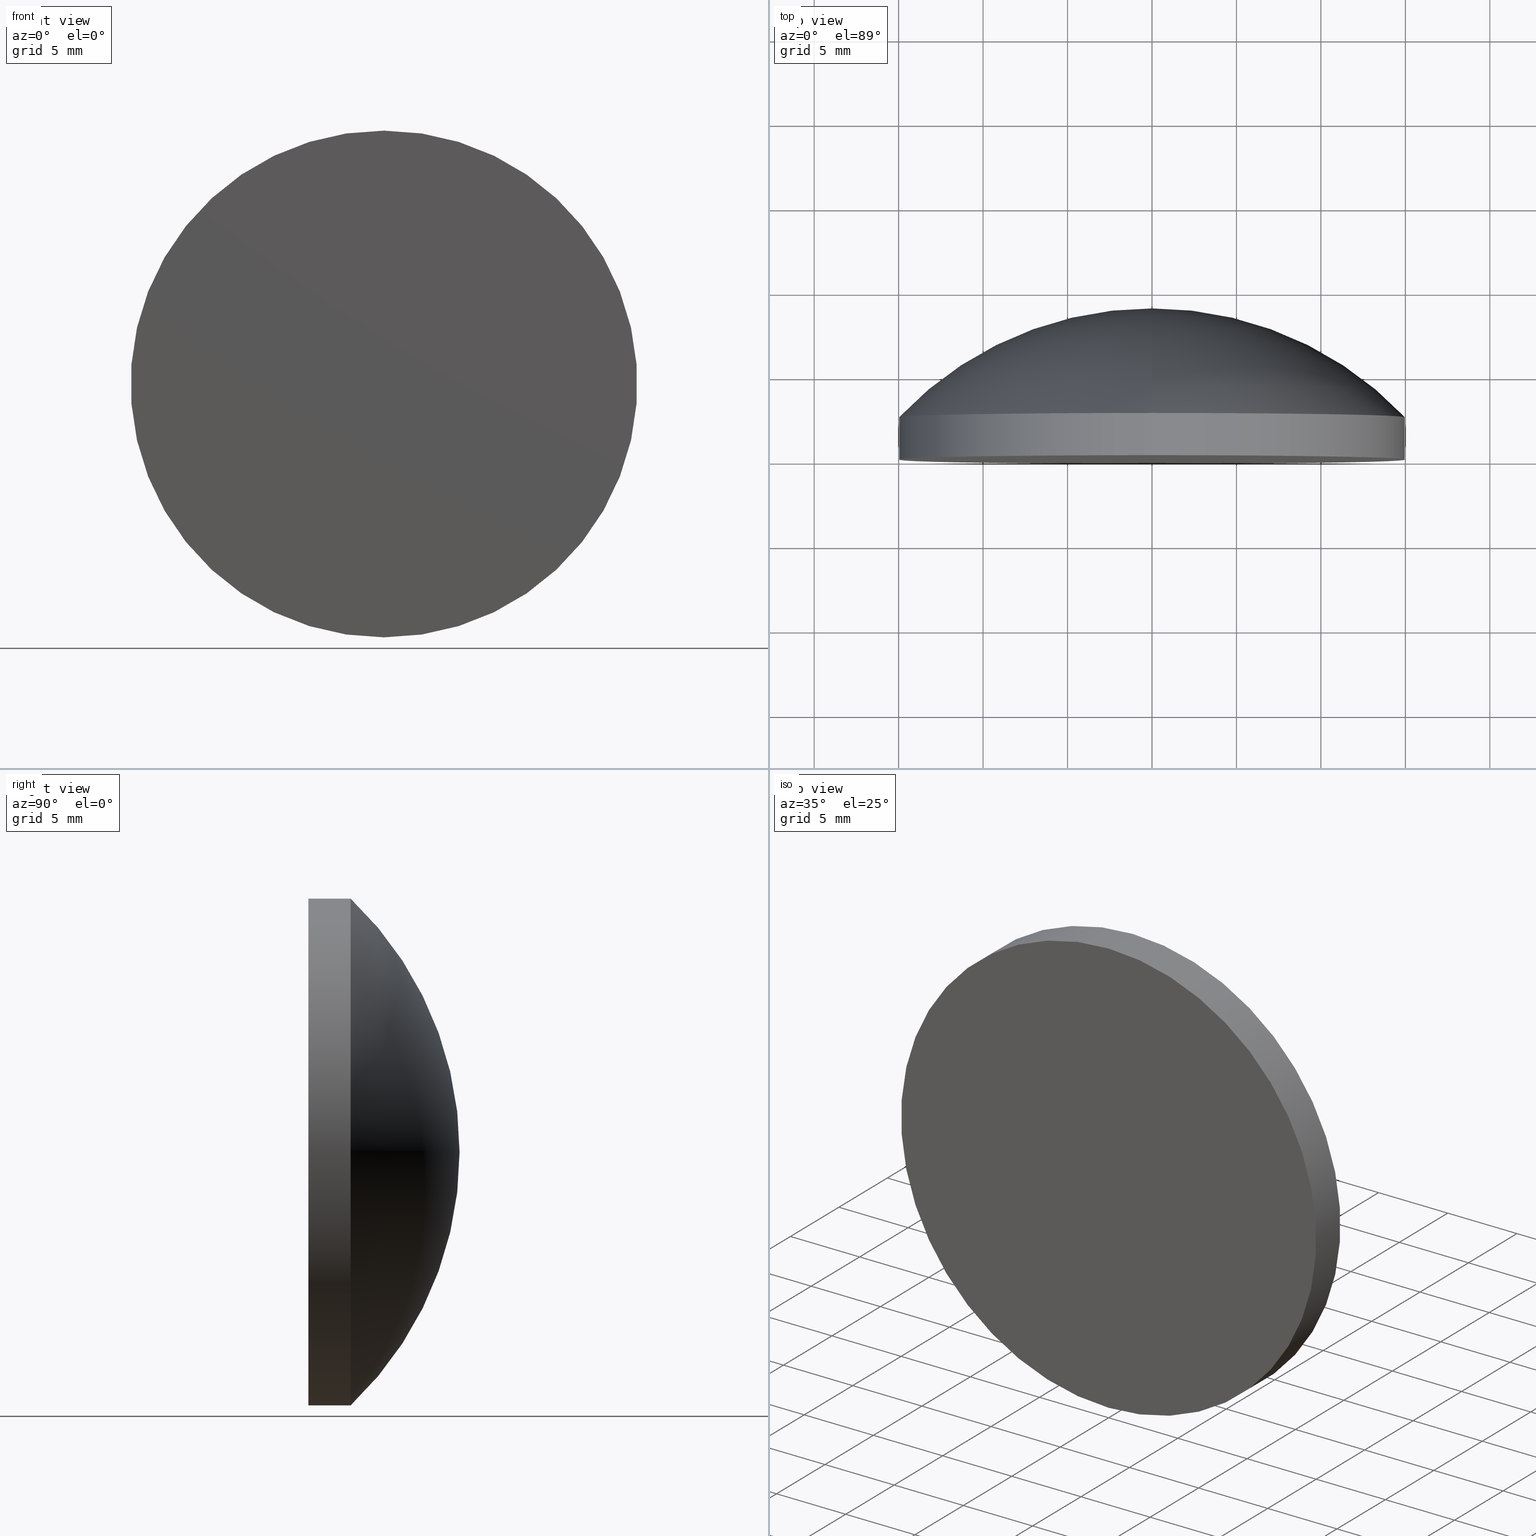
[diagram: canonical four-view strip — front | top / right | iso, engineering-drawing reading convention]
A machine part, canonical four-view strip (front | top / right | iso — engineering-drawing reading convention). The complete STEP part file that produces these views, byte-faithful:
ISO-10303-21;
HEADER;
FILE_DESCRIPTION (( 'STEP AP203' ),
    '1' );
FILE_NAME ('100594.STEP',
    '2024-05-10T01:51:33',
    ( '' ),
    ( '' ),
    'SwSTEP 2.0',
    'SolidWorks 2020',
    '' );
FILE_SCHEMA (( 'CONFIG_CONTROL_DESIGN' ));
ENDSEC;

DATA;
#1 = DIRECTION ( 'NONE',  ( 0.000000000000000000, 0.000000000000000000, 1.000000000000000000 ) ) ;
#2 = AXIS2_PLACEMENT_3D ( 'NONE', #142, #16, #156 ) ;
#3 = CC_DESIGN_APPROVAL ( #153, ( #56 ) ) ;
#4 = DATE_TIME_ROLE ( 'classification_date' ) ;
#5 = DIRECTION ( 'NONE',  ( 0.000000000000000000, 0.000000000000000000, 1.000000000000000000 ) ) ;
#6 = CARTESIAN_POINT ( 'NONE',  ( 0.000000000000000000, -1.734723475976807094E-15, 0.000000000000000000 ) ) ;
#7 = CALENDAR_DATE ( 2024, 10, 5 ) ;
#8 = ORIENTED_EDGE ( 'NONE', *, *, #195, .F. ) ;
#9 = CALENDAR_DATE ( 2024, 10, 5 ) ;
#10 = VERTEX_POINT ( 'NONE', #118 ) ;
#11 = PERSON ( 'δָ��', 'δָ��', 'δָ��', ('δָ��'), ('δָ��'), ('δָ��') ) ;
#12 = EDGE_CURVE ( 'NONE', #42, #10, #15, .T. ) ;
#13 = AXIS2_PLACEMENT_3D ( 'NONE', #58, #171, #182 ) ;
#14 = CARTESIAN_POINT ( 'NONE',  ( 0.000000000000000000, -11.71999995591560406, 0.000000000000000000 ) ) ;
#15 = CIRCLE ( 'NONE', #129, 20.66999999999999460 ) ;
#16 = DIRECTION ( 'NONE',  ( 0.000000000000000000, 0.000000000000000000, 1.000000000000000000 ) ) ;
#17 = APPROVAL_STATUS ( 'not_yet_approved' ) ;
#18 = EDGE_CURVE ( 'NONE', #41, #190, #122, .T. ) ;
#19 = CARTESIAN_POINT ( 'NONE',  ( 0.000000000000000000, -9.184850993605147944E-16, 0.000000000000000000 ) ) ;
#20 = ORIENTED_EDGE ( 'NONE', *, *, #175, .T. ) ;
#21 = APPROVAL ( #189, 'δָ��' ) ;
#22 = PERSON_AND_ORGANIZATION ( #11, #123 ) ;
#23 = ORIENTED_EDGE ( 'NONE', *, *, #146, .T. ) ;
#24 = DATE_AND_TIME ( #7, #172 ) ;
#25 = CC_DESIGN_SECURITY_CLASSIFICATION ( #30, ( #56 ) ) ;
#26 = PRODUCT_DEFINITION ( 'δ֪', '', #56, #32 ) ;
#27 = DIRECTION ( 'NONE',  ( 1.224646799147353454E-16, 0.000000000000000000, -1.000000000000000000 ) ) ;
#28 = APPROVAL_PERSON_ORGANIZATION ( #86, #37, #49 ) ;
#29 = CC_DESIGN_PERSON_AND_ORGANIZATION_ASSIGNMENT ( #151, #52, ( #26 ) ) ;
#30 = SECURITY_CLASSIFICATION ( '', '', #144 ) ;
#31 = DIRECTION ( 'NONE',  ( 0.000000000000000000, 0.000000000000000000, 1.000000000000000000 ) ) ;
#32 = DESIGN_CONTEXT ( 'detailed design', #61, 'design' ) ;
#33 = DIRECTION ( 'NONE',  ( -0.000000000000000000, 1.000000000000000000, -0.000000000000000000 ) ) ;
#34 = DIRECTION ( 'NONE',  ( -0.000000000000000000, 1.000000000000000000, -0.000000000000000000 ) ) ;
#35 = CALENDAR_DATE ( 2024, 10, 5 ) ;
#36 = FACE_OUTER_BOUND ( 'NONE', #104, .T. ) ;
#37 = APPROVAL ( #17, 'δָ��' ) ;
#38 = AXIS2_PLACEMENT_3D ( 'NONE', #93, #75, #111 ) ;
#39 = DATE_AND_TIME ( #9, #113 ) ;
#40 = PERSON_AND_ORGANIZATION_ROLE ( 'creator' ) ;
#41 = VERTEX_POINT ( 'NONE', #131 ) ;
#42 = VERTEX_POINT ( 'NONE', #179 ) ;
#43 = ADVANCED_FACE ( 'NONE', ( #36 ), #83, .T. ) ;
#44 =( NAMED_UNIT ( * ) PLANE_ANGLE_UNIT ( ) SI_UNIT ( $, .RADIAN. ) );
#45 = PLANE ( 'NONE',  #98 ) ;
#46 = CARTESIAN_POINT ( 'NONE',  ( 0.000000000000000000, 8.949999999999999289, 15.00000000000000000 ) ) ;
#47 = TOROIDAL_SURFACE ( 'NONE', #38, -0.001349981043710993256, 20.66999999999999815 ) ;
#48 = PERSON_AND_ORGANIZATION ( #11, #123 ) ;
#49 = APPROVAL_ROLE ( '' ) ;
#50 = ORIENTED_EDGE ( 'NONE', *, *, #195, .T. ) ;
#51 = PRODUCT_RELATED_PRODUCT_CATEGORY ( 'detail', '', ( #141 ) ) ;
#52 = PERSON_AND_ORGANIZATION_ROLE ( 'creator' ) ;
#53 = APPLICATION_PROTOCOL_DEFINITION ( 'international standard', 'config_control_design', 1994, #61 ) ;
#54 = EDGE_LOOP ( 'NONE', ( #70, #99 ) ) ;
#55 = AXIS2_PLACEMENT_3D ( 'NONE', #188, #140, #27 ) ;
#56 = PRODUCT_DEFINITION_FORMATION_WITH_SPECIFIED_SOURCE ( '�κ�', '', #141, .NOT_KNOWN. ) ;
#57 = VECTOR ( 'NONE', #116, 1000.000000000000000 ) ;
#58 = CARTESIAN_POINT ( 'NONE',  ( 0.000000000000000000, 2.499999999999998668, 0.000000000000000000 ) ) ;
#59 = ADVANCED_BREP_SHAPE_REPRESENTATION ( '100594', ( #88, #2 ), #136 ) ;
#60 = UNCERTAINTY_MEASURE_WITH_UNIT (LENGTH_MEASURE( 1.000000000000000082E-05 ), #62, 'distance_accuracy_value', 'NONE');
#61 = APPLICATION_CONTEXT ( 'configuration controlled 3d designs of mechanical parts and assemblies' ) ;
#62 =( LENGTH_UNIT ( ) NAMED_UNIT ( * ) SI_UNIT ( .MILLI., .METRE. ) );
#63 = CIRCLE ( 'NONE', #194, 15.00000000000000000 ) ;
#64 = DIRECTION ( 'NONE',  ( 0.000000000000000000, 0.000000000000000000, 1.000000000000000000 ) ) ;
#65 = CC_DESIGN_PERSON_AND_ORGANIZATION_ASSIGNMENT ( #97, #69, ( #56 ) ) ;
#66 = DATE_AND_TIME ( #35, #76 ) ;
#67 = ORIENTED_EDGE ( 'NONE', *, *, #18, .F. ) ;
#68 = AXIS2_PLACEMENT_3D ( 'NONE', #6, #33, #1 ) ;
#69 = PERSON_AND_ORGANIZATION_ROLE ( 'design_supplier' ) ;
#70 = ORIENTED_EDGE ( 'NONE', *, *, #89, .F. ) ;
#71 = COORDINATED_UNIVERSAL_TIME_OFFSET ( 8, 0, .AHEAD. ) ;
#72 = ORIENTED_EDGE ( 'NONE', *, *, #197, .F. ) ;
#73 = ORIENTED_EDGE ( 'NONE', *, *, #12, .T. ) ;
#74 = VECTOR ( 'NONE', #169, 1000.000000000000000 ) ;
#75 = DIRECTION ( 'NONE',  ( -0.000000000000000000, 1.000000000000000000, -0.000000000000000000 ) ) ;
#76 = LOCAL_TIME ( 9, 51, 33.00000000000000000, #80 ) ;
#77 = CARTESIAN_POINT ( 'NONE',  ( 0.000000000000000000, 8.949999999999999289, 0.000000000000000000 ) ) ;
#78 = DIRECTION ( 'NONE',  ( -0.000000000000000000, 1.000000000000000000, -0.000000000000000000 ) ) ;
#79 = FACE_OUTER_BOUND ( 'NONE', #167, .T. ) ;
#80 = COORDINATED_UNIVERSAL_TIME_OFFSET ( 8, 0, .AHEAD. ) ;
#81 = CIRCLE ( 'NONE', #185, 15.00000000000000000 ) ;
#82 = APPROVAL_STATUS ( 'not_yet_approved' ) ;
#83 = TOROIDAL_SURFACE ( 'NONE', #173, -0.001349981043710993256, 20.66999999999999815 ) ;
#84 = APPROVAL_DATE_TIME ( #176, #37 ) ;
#85 = EDGE_LOOP ( 'NONE', ( #67, #191, #23, #87 ) ) ;
#86 = PERSON_AND_ORGANIZATION ( #11, #123 ) ;
#87 = ORIENTED_EDGE ( 'NONE', *, *, #175, .F. ) ;
#88 = MANIFOLD_SOLID_BREP ( '��ת1', #106 ) ;
#89 = EDGE_CURVE ( 'NONE', #177, #41, #158, .T. ) ;
#90 = APPLICATION_PROTOCOL_DEFINITION ( 'international standard', 'config_control_design', 1994, #105 ) ;
#91 = ADVANCED_FACE ( 'NONE', ( #79 ), #199, .T. ) ;
#92 = CC_DESIGN_APPROVAL ( #21, ( #30 ) ) ;
#93 = CARTESIAN_POINT ( 'NONE',  ( 0.000000000000000000, -11.71999995591560406, 0.000000000000000000 ) ) ;
#94 = FACE_OUTER_BOUND ( 'NONE', #134, .T. ) ;
#95 = PERSON_AND_ORGANIZATION ( #11, #123 ) ;
#96 = LINE ( 'NONE', #46, #74 ) ;
#97 = PERSON_AND_ORGANIZATION ( #11, #123 ) ;
#98 = AXIS2_PLACEMENT_3D ( 'NONE', #19, #137, #184 ) ;
#99 = ORIENTED_EDGE ( 'NONE', *, *, #107, .F. ) ;
#100 = AXIS2_PLACEMENT_3D ( 'NONE', #77, #34, #31 ) ;
#101 = SHAPE_DEFINITION_REPRESENTATION ( #110, #59 ) ;
#102 = PERSON_AND_ORGANIZATION_ROLE ( 'design_owner' ) ;
#103 = ORIENTED_EDGE ( 'NONE', *, *, #18, .T. ) ;
#104 = EDGE_LOOP ( 'NONE', ( #50, #164, #152 ) ) ;
#105 = APPLICATION_CONTEXT ( 'configuration controlled 3d designs of mechanical parts and assemblies' ) ;
#106 = CLOSED_SHELL ( 'NONE', ( #91, #43, #186, #135, #154 ) ) ;
#107 = EDGE_CURVE ( 'NONE', #41, #177, #81, .T. ) ;
#108 = CARTESIAN_POINT ( 'NONE',  ( 0.000000000000000000, 8.949999999999999289, 0.000000000000000000 ) ) ;
#109 = DIRECTION ( 'NONE',  ( -0.000000000000000000, 1.000000000000000000, -0.000000000000000000 ) ) ;
#110 = PRODUCT_DEFINITION_SHAPE ( 'NONE', 'NONE',  #26 ) ;
#111 = DIRECTION ( 'NONE',  ( 0.000000000000000000, 0.000000000000000000, 1.000000000000000000 ) ) ;
#112 = CIRCLE ( 'NONE', #55, 20.66999999999999460 ) ;
#113 = LOCAL_TIME ( 9, 51, 33.00000000000000000, #180 ) ;
#114 = LOCAL_TIME ( 9, 51, 33.00000000000000000, #147 ) ;
#115 = CALENDAR_DATE ( 2024, 10, 5 ) ;
#116 = DIRECTION ( 'NONE',  ( -0.000000000000000000, 1.000000000000000000, -0.000000000000000000 ) ) ;
#117 = CALENDAR_DATE ( 2024, 10, 5 ) ;
#118 = CARTESIAN_POINT ( 'NONE',  ( 0.000000000000000000, 8.949999999999999289, 0.000000000000000000 ) ) ;
#119 = CC_DESIGN_DATE_AND_TIME_ASSIGNMENT ( #24, #4, ( #30 ) ) ;
#120 = APPROVAL_DATE_TIME ( #66, #153 ) ;
#121 = DIRECTION ( 'NONE',  ( -1.000000000000000000, 0.000000000000000000, 0.000000000000000000 ) ) ;
#122 = LINE ( 'NONE', #181, #57 ) ;
#123 = ORGANIZATION ( 'δָ��', 'δָ��', '' ) ;
#124 = CARTESIAN_POINT ( 'NONE',  ( 0.000000000000000000, 2.499999999999998668, 0.000000000000000000 ) ) ;
#125 = CARTESIAN_POINT ( 'NONE',  ( 0.000000000000000000, -1.734723475976807094E-15, 15.00000000000000000 ) ) ;
#126 = CC_DESIGN_DATE_AND_TIME_ASSIGNMENT ( #132, #166, ( #26 ) ) ;
#127 = AXIS2_PLACEMENT_3D ( 'NONE', #108, #187, #64 ) ;
#128 = DIRECTION ( 'NONE',  ( 0.000000000000000000, 0.000000000000000000, 1.000000000000000000 ) ) ;
#129 = AXIS2_PLACEMENT_3D ( 'NONE', #148, #121, #193 ) ;
#130 = APPROVAL_DATE_TIME ( #39, #21 ) ;
#131 = CARTESIAN_POINT ( 'NONE',  ( 1.836970198721029589E-15, -1.734723475976807094E-15, -15.00000000000000000 ) ) ;
#132 = DATE_AND_TIME ( #117, #114 ) ;
#133 = ORIENTED_EDGE ( 'NONE', *, *, #146, .F. ) ;
#134 = EDGE_LOOP ( 'NONE', ( #72, #20, #73 ) ) ;
#135 = ADVANCED_FACE ( 'NONE', ( #200 ), #45, .T. ) ;
#136 =( GEOMETRIC_REPRESENTATION_CONTEXT ( 3 ) GLOBAL_UNCERTAINTY_ASSIGNED_CONTEXT ( ( #60 ) ) GLOBAL_UNIT_ASSIGNED_CONTEXT ( ( #62, #44, #198 ) ) REPRESENTATION_CONTEXT ( 'NONE', 'WORKASPACE' ) );
#137 = DIRECTION ( 'NONE',  ( 0.000000000000000000, -1.000000000000000000, 0.000000000000000000 ) ) ;
#138 = APPROVAL_PERSON_ORGANIZATION ( #22, #21, #149 ) ;
#139 = DIRECTION ( 'NONE',  ( 0.000000000000000000, 0.000000000000000000, 1.000000000000000000 ) ) ;
#140 = DIRECTION ( 'NONE',  ( 1.000000000000000000, 0.000000000000000000, 1.224646799147353207E-16 ) ) ;
#141 = PRODUCT ( '100594', '100594', '', ( #157 ) ) ;
#142 = CARTESIAN_POINT ( 'NONE',  ( 0.000000000000000000, 0.000000000000000000, 0.000000000000000000 ) ) ;
#143 = LOCAL_TIME ( 9, 51, 33.00000000000000000, #163 ) ;
#144 = SECURITY_CLASSIFICATION_LEVEL ( 'unclassified' ) ;
#145 = DIRECTION ( 'NONE',  ( -0.000000000000000000, 1.000000000000000000, -0.000000000000000000 ) ) ;
#146 = EDGE_CURVE ( 'NONE', #177, #42, #96, .T. ) ;
#147 = COORDINATED_UNIVERSAL_TIME_OFFSET ( 8, 0, .AHEAD. ) ;
#148 = CARTESIAN_POINT ( 'NONE',  ( 0.000000000000000000, -11.71999995591560406, -0.001349981043710993256 ) ) ;
#149 = APPROVAL_ROLE ( '' ) ;
#150 = ORIENTED_EDGE ( 'NONE', *, *, #89, .T. ) ;
#151 = PERSON_AND_ORGANIZATION ( #11, #123 ) ;
#152 = ORIENTED_EDGE ( 'NONE', *, *, #12, .F. ) ;
#153 = APPROVAL ( #82, 'δָ��' ) ;
#154 = ADVANCED_FACE ( 'NONE', ( #161 ), #174, .T. ) ;
#155 = CC_DESIGN_PERSON_AND_ORGANIZATION_ASSIGNMENT ( #178, #40, ( #56 ) ) ;
#156 = DIRECTION ( 'NONE',  ( 1.000000000000000000, 0.000000000000000000, 0.000000000000000000 ) ) ;
#157 = MECHANICAL_CONTEXT ( 'NONE', #105, 'mechanical' ) ;
#158 = CIRCLE ( 'NONE', #68, 15.00000000000000000 ) ;
#159 = CARTESIAN_POINT ( 'NONE',  ( 1.836970198721029589E-15, 2.499999999999997780, -15.00000000000000000 ) ) ;
#160 = APPROVAL_ROLE ( '' ) ;
#161 = FACE_OUTER_BOUND ( 'NONE', #85, .T. ) ;
#162 = CIRCLE ( 'NONE', #13, 15.00000000000000000 ) ;
#163 = COORDINATED_UNIVERSAL_TIME_OFFSET ( 8, 0, .AHEAD. ) ;
#164 = ORIENTED_EDGE ( 'NONE', *, *, #197, .T. ) ;
#165 = PERSON_AND_ORGANIZATION ( #11, #123 ) ;
#166 = DATE_TIME_ROLE ( 'creation_date' ) ;
#167 = EDGE_LOOP ( 'NONE', ( #150, #103, #8, #133 ) ) ;
#168 = CC_DESIGN_PERSON_AND_ORGANIZATION_ASSIGNMENT ( #48, #102, ( #141 ) ) ;
#169 = DIRECTION ( 'NONE',  ( -0.000000000000000000, 1.000000000000000000, -0.000000000000000000 ) ) ;
#170 = CC_DESIGN_APPROVAL ( #37, ( #26 ) ) ;
#171 = DIRECTION ( 'NONE',  ( -0.000000000000000000, 1.000000000000000000, -0.000000000000000000 ) ) ;
#172 = LOCAL_TIME ( 9, 51, 33.00000000000000000, #71 ) ;
#173 = AXIS2_PLACEMENT_3D ( 'NONE', #14, #145, #139 ) ;
#174 = CYLINDRICAL_SURFACE ( 'NONE', #100, 15.00000000000000000 ) ;
#175 = EDGE_CURVE ( 'NONE', #190, #42, #63, .T. ) ;
#176 = DATE_AND_TIME ( #115, #143 ) ;
#177 = VERTEX_POINT ( 'NONE', #125 ) ;
#178 = PERSON_AND_ORGANIZATION ( #11, #123 ) ;
#179 = CARTESIAN_POINT ( 'NONE',  ( 0.000000000000000000, 2.499999999999997780, 15.00000000000000000 ) ) ;
#180 = COORDINATED_UNIVERSAL_TIME_OFFSET ( 8, 0, .AHEAD. ) ;
#181 = CARTESIAN_POINT ( 'NONE',  ( 1.836970198721029589E-15, 8.949999999999999289, -15.00000000000000000 ) ) ;
#182 = DIRECTION ( 'NONE',  ( 0.000000000000000000, 0.000000000000000000, 1.000000000000000000 ) ) ;
#183 = CARTESIAN_POINT ( 'NONE',  ( 0.000000000000000000, -1.734723475976807094E-15, 0.000000000000000000 ) ) ;
#184 = DIRECTION ( 'NONE',  ( 0.000000000000000000, -0.000000000000000000, -1.000000000000000000 ) ) ;
#185 = AXIS2_PLACEMENT_3D ( 'NONE', #183, #109, #128 ) ;
#186 = ADVANCED_FACE ( 'NONE', ( #94 ), #47, .T. ) ;
#187 = DIRECTION ( 'NONE',  ( -0.000000000000000000, 1.000000000000000000, -0.000000000000000000 ) ) ;
#188 = CARTESIAN_POINT ( 'NONE',  ( -1.653249964090270865E-19, -11.71999995591560406, 0.001349981043710993256 ) ) ;
#189 = APPROVAL_STATUS ( 'not_yet_approved' ) ;
#190 = VERTEX_POINT ( 'NONE', #159 ) ;
#191 = ORIENTED_EDGE ( 'NONE', *, *, #107, .T. ) ;
#192 = PERSON_AND_ORGANIZATION_ROLE ( 'classification_officer' ) ;
#193 = DIRECTION ( 'NONE',  ( 0.000000000000000000, 0.000000000000000000, 1.000000000000000000 ) ) ;
#194 = AXIS2_PLACEMENT_3D ( 'NONE', #124, #78, #5 ) ;
#195 = EDGE_CURVE ( 'NONE', #42, #190, #162, .T. ) ;
#196 = APPROVAL_PERSON_ORGANIZATION ( #95, #153, #160 ) ;
#197 = EDGE_CURVE ( 'NONE', #190, #10, #112, .T. ) ;
#198 =( NAMED_UNIT ( * ) SI_UNIT ( $, .STERADIAN. ) SOLID_ANGLE_UNIT ( ) );
#199 = CYLINDRICAL_SURFACE ( 'NONE', #127, 15.00000000000000000 ) ;
#200 = FACE_OUTER_BOUND ( 'NONE', #54, .T. ) ;
#201 = CC_DESIGN_PERSON_AND_ORGANIZATION_ASSIGNMENT ( #165, #192, ( #30 ) ) ;
ENDSEC;
END-ISO-10303-21;
